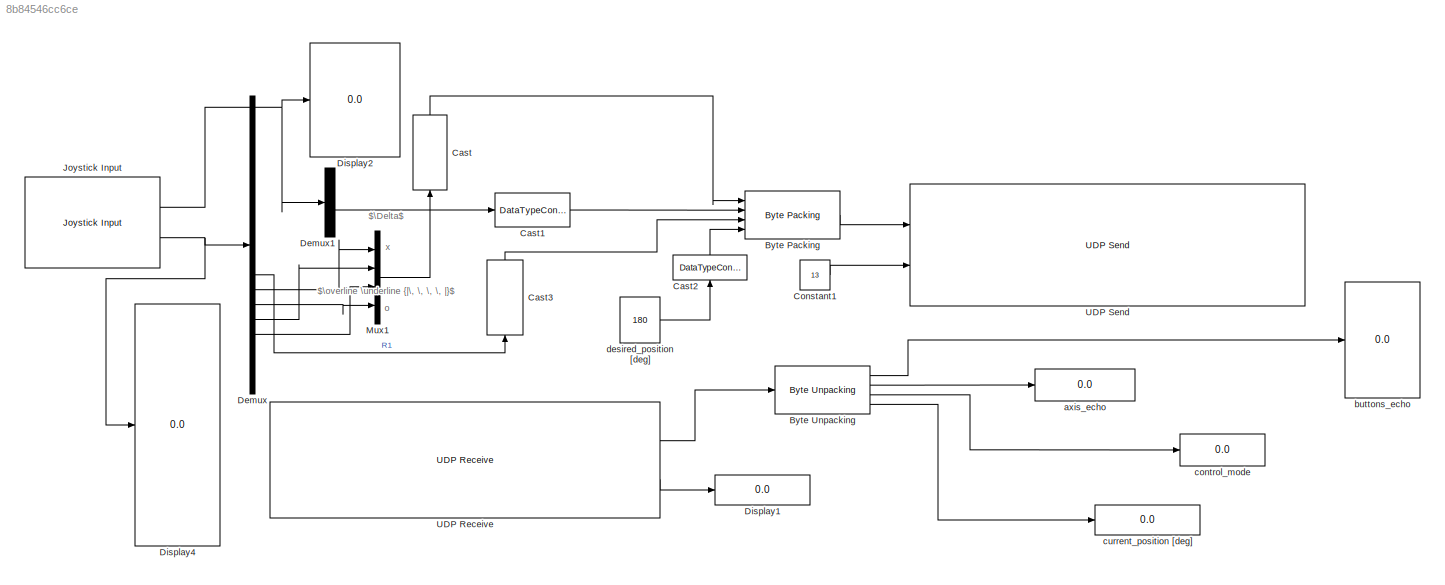
MODEL slx_8b84546cc6ce
KIND model
CONFIG AbsTol = auto
CONFIG EnableMultiTasking = off
CONFIG FixedStep = 0.001
CONFIG MaxStep = auto
CONFIG MinStep = auto
CONFIG RelTol = 1e-3
CONFIG SampleTimeConstraint = Unconstrained
CONFIG Solver = FixedStepDiscrete
CONFIG SolverName = FixedStepDiscrete
CONFIG StartTime = 0.0
CONFIG StopTime = inf
BLOCK [Reference] Byte Packing   REF=xpcutilitieslib/Byte Packing 
  Ports = [4, 1]
  SourceBlock = xpcutilitieslib/Byte Packing
  SourceProductBaseCode = XP
  SourceProductName = Simulink Real-Time
  SourceType = xpcbytepacking
BLOCK [Reference] Byte Unpacking   REF=xpcutilitieslib/Byte Unpacking 
  Ports = [1, 4]
  SourceBlock = xpcutilitieslib/Byte Unpacking
  SourceProductBaseCode = XP
  SourceProductName = Simulink Real-Time
  SourceType = xpcbytepacking
BLOCK [DataTypeConversion] Cast
  OutDataTypeStr = uint8
  RndMeth = Floor
  SaturateOnIntegerOverflow = off
BLOCK [DataTypeConversion] Cast1
  OutDataTypeStr = single
  RndMeth = Floor
  SaturateOnIntegerOverflow = off
BLOCK [DataTypeConversion] Cast2
  OutDataTypeStr = single
  RndMeth = Floor
  SaturateOnIntegerOverflow = off
BLOCK [DataTypeConversion] Cast3
  OutDataTypeStr = uint8
  RndMeth = Floor
  SaturateOnIntegerOverflow = off
BLOCK [Constant] Constant1
  Value = 13
BLOCK [Demux] Demux
  DisplayOption = bar
  Outputs = 19
  Ports = [1, 19]
BLOCK [Demux] Demux1
  DisplayOption = bar
  Ports = [1, 4]
BLOCK [Display] Display1
  Decimation = 1
  Ports = [1]
BLOCK [Display] Display2
  Decimation = 1
  Ports = [1]
BLOCK [Display] Display4
  Decimation = 1
  Ports = [1]
BLOCK [Reference] Joystick Input  REF=vrlib/Joystick Input
  Ports = [0, 2]
  SourceBlock = vrlib/Joystick Input
  SourceProductBaseCode = SL
  SourceProductName = Simulink
  SourceType = Joystick Input
BLOCK [Mux] Mux1
  DisplayOption = bar
  Ports = [4, 1]
BLOCK [Reference] UDP Receive  REF=xpcrtudplib/UDP Receive
  Ports = [0, 2]
  SourceBlock = xpcrtudplib/UDP Receive
  SourceProductBaseCode = XP
  SourceProductName = Simulink Real-Time
  SourceType = slrtudpreceive
BLOCK [Reference] UDP Send  REF=xpcrtudplib/UDP Send
  Ports = [2]
  SourceBlock = xpcrtudplib/UDP Send
  SourceProductBaseCode = XP
  SourceProductName = Simulink Real-Time
  SourceType = slrtudpsend
BLOCK [Display] axis_echo
  Decimation = 1
  Ports = [1]
BLOCK [Display] buttons_echo
  Decimation = 1
  Ports = [1]
BLOCK [Display] control_mode
  Decimation = 1
  Ports = [1]
BLOCK [Display] current_position [deg]
  Decimation = 1
  Ports = [1]
BLOCK [Constant] desired_position [deg]
  Value = 180
ANNOTATION (root): o
ANNOTATION (root): x
ANNOTATION (root): $\Delta$
ANNOTATION (root): $\overline \underline {|\, \, \, \, |}$
LINE Byte Packing :1 -> UDP Send:1
LINE Byte Unpacking :1 -> buttons_echo:1
LINE Byte Unpacking :2 -> axis_echo:1
LINE Byte Unpacking :3 -> control_mode:1
LINE Byte Unpacking :4 -> current_position [deg]:1
LINE Cast1:1 -> Byte Packing :2
LINE Cast2:1 -> Byte Packing :4
LINE Cast3:1 -> Byte Packing :3
LINE Cast:1 -> Byte Packing :1
LINE Constant1:1 -> UDP Send:2
LINE Demux1:3 -> Cast1:1
LINE Demux:12 -> Cast3:1
LINE Demux:13 -> Mux1:1
LINE Demux:14 -> Mux1:4
LINE Demux:15 -> Mux1:2
LINE Demux:16 -> Mux1:3
NET Joystick Input:1 -> Demux1:1, Display2:1
NET Joystick Input:2 -> Demux:1, Display4:1
LINE Mux1:1 -> Cast:1
LINE UDP Receive:1 -> Byte Unpacking :1
LINE UDP Receive:2 -> Display1:1
LINE desired_position [deg]:1 -> Cast2:1
note: NET lines group one-source signal fan-out (src -> all destinations, sorted); 1:1 wires keep LINE
